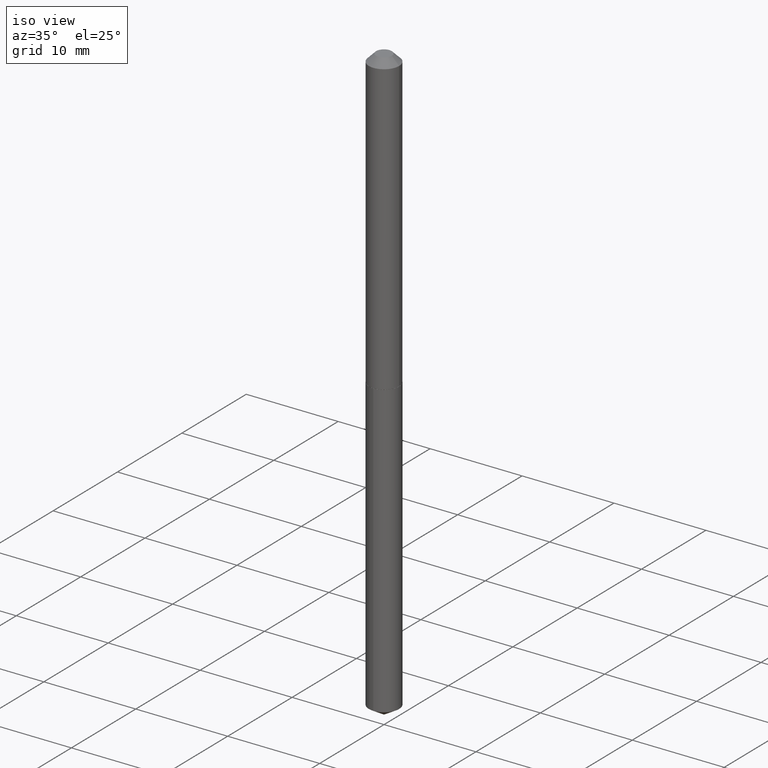
[diagram: clean part render]
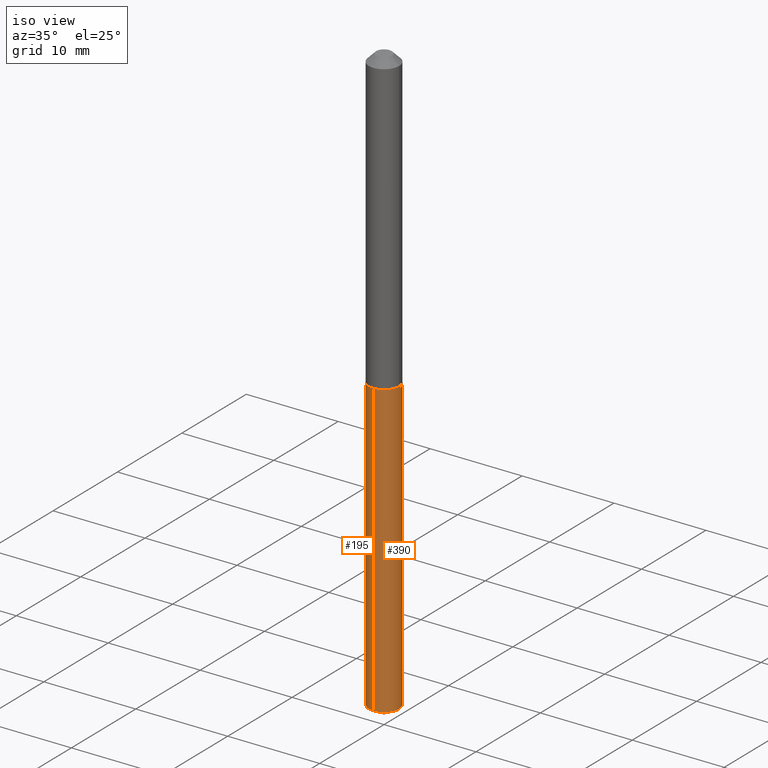
[diagram: same view with one multi-face feature highlighted, each face labeled with its STEP entity id]
A machine part, iso view. The highlighted faces form ONE feature: a constant-radius fillet chain: 2 tangent blend faces with common blend radius 1.6497 mm. The faces share edges in the B-rep.
Their STEP definitions:
[1] entity #195 (Cylinder):
#9 = AXIS2_PLACEMENT_3D ( 'NONE', #377, #18, #171 ) ;
#12 = FACE_OUTER_BOUND ( 'NONE', #358, .T. ) ;
#14 = CARTESIAN_POINT ( 'NONE',  ( 4.614975068762160884E-16, 0.06494999999999555296, -1.271700000000000275 ) ) ;
#18 = DIRECTION ( 'NONE',  ( -2.445534301021628204E-29, 3.491387546509555322E-15, 1.000000000000000000 ) ) ;
#22 = VERTEX_POINT ( 'NONE', #337 ) ;
#26 = EDGE_CURVE ( 'NONE', #384, #375, #37, .T. ) ;
#36 = DIRECTION ( 'NONE',  ( -2.445534301021628204E-29, 3.491387546509555322E-15, 1.000000000000000000 ) ) ;
#37 = CIRCLE ( 'NONE', #367, 0.06494999999999999385 ) ;
#49 = CARTESIAN_POINT ( 'NONE',  ( -4.535434259156918360E-16, -0.06495000000000443474, -1.271699999999999608 ) ) ;
#55 = CARTESIAN_POINT ( 'NONE',  ( 6.162844369715857787E-29, -8.798674614487400360E-15, -2.520074102794160442 ) ) ;
#76 = CARTESIAN_POINT ( 'NONE',  ( -4.535434259156613663E-16, -0.06495000000000882012, -2.520074102794160442 ) ) ;
#100 = CIRCLE ( 'NONE', #9, 0.06494999999999999385 ) ;
#158 = ORIENTED_EDGE ( 'NONE', *, *, #26, .T. ) ;
#160 = AXIS2_PLACEMENT_3D ( 'NONE', #263, #36, #289 ) ;
#166 = VECTOR ( 'NONE', #268, 39.37007874015748143 ) ;
#171 = DIRECTION ( 'NONE',  ( -6.982962677686266711E-15, -1.000000000000000000, 4.206078512185163024E-15 ) ) ;
#185 = DIRECTION ( 'NONE',  ( -2.445534301021628204E-29, 3.491387546509555322E-15, 1.000000000000000000 ) ) ;
#195 = ADVANCED_FACE ( 'NONE', ( #12 ), #313, .T. ) ;
#202 = EDGE_CURVE ( 'NONE', #375, #274, #260, .T. ) ;
#211 = CARTESIAN_POINT ( 'NONE',  ( 4.614975068762467554E-16, 0.06494999999999120921, -2.520074102794160442 ) ) ;
#224 = ORIENTED_EDGE ( 'NONE', *, *, #261, .F. ) ;
#260 = LINE ( 'NONE', #319, #283 ) ;
#261 = EDGE_CURVE ( 'NONE', #384, #22, #379, .T. ) ;
#263 = CARTESIAN_POINT ( 'NONE',  ( 3.109902680825638129E-29, -4.440116818606828093E-15, -1.271700000000000053 ) ) ;
#267 = EDGE_CURVE ( 'NONE', #22, #274, #100, .T. ) ;
#268 = DIRECTION ( 'NONE',  ( -2.445534301021628204E-29, 3.491387546509555322E-15, 1.000000000000000000 ) ) ;
#274 = VERTEX_POINT ( 'NONE', #49 ) ;
#283 = VECTOR ( 'NONE', #322, 39.37007874015748143 ) ;
#289 = DIRECTION ( 'NONE',  ( -6.982962677686266711E-15, -1.000000000000000000, 4.206078512185163024E-15 ) ) ;
#304 = DIRECTION ( 'NONE',  ( -6.982962677686266711E-15, -1.000000000000000000, 0.000000000000000000 ) ) ;
#313 = CYLINDRICAL_SURFACE ( 'NONE', #160, 0.06494999999999999385 ) ;
#319 = CARTESIAN_POINT ( 'NONE',  ( -4.535434259156918360E-16, -0.06495000000000443474, -1.271699999999999608 ) ) ;
#322 = DIRECTION ( 'NONE',  ( -2.445534301021628204E-29, 3.491387546509555322E-15, 1.000000000000000000 ) ) ;
#337 = CARTESIAN_POINT ( 'NONE',  ( 4.614975068762469526E-16, 0.06494999999999556684, -1.271700000000000275 ) ) ;
#356 = ORIENTED_EDGE ( 'NONE', *, *, #267, .F. ) ;
#358 = EDGE_LOOP ( 'NONE', ( #224, #158, #363, #356 ) ) ;
#363 = ORIENTED_EDGE ( 'NONE', *, *, #202, .T. ) ;
#367 = AXIS2_PLACEMENT_3D ( 'NONE', #55, #185, #304 ) ;
#375 = VERTEX_POINT ( 'NONE', #76 ) ;
#377 = CARTESIAN_POINT ( 'NONE',  ( 3.109902680825638129E-29, -4.440116818606828093E-15, -1.271700000000000053 ) ) ;
#379 = LINE ( 'NONE', #14, #166 ) ;
#384 = VERTEX_POINT ( 'NONE', #211 ) ;
[2] entity #390 (Cylinder):
#8 = AXIS2_PLACEMENT_3D ( 'NONE', #338, #193, #314 ) ;
#14 = CARTESIAN_POINT ( 'NONE',  ( 4.614975068762160884E-16, 0.06494999999999555296, -1.271700000000000275 ) ) ;
#22 = VERTEX_POINT ( 'NONE', #337 ) ;
#49 = CARTESIAN_POINT ( 'NONE',  ( -4.535434259156918360E-16, -0.06495000000000443474, -1.271699999999999608 ) ) ;
#51 = AXIS2_PLACEMENT_3D ( 'NONE', #99, #256, #197 ) ;
#68 = EDGE_CURVE ( 'NONE', #375, #384, #172, .T. ) ;
#75 = CYLINDRICAL_SURFACE ( 'NONE', #246, 0.06494999999999999385 ) ;
#76 = CARTESIAN_POINT ( 'NONE',  ( -4.535434259156613663E-16, -0.06495000000000882012, -2.520074102794160442 ) ) ;
#83 = EDGE_LOOP ( 'NONE', ( #387, #331, #349, #251 ) ) ;
#99 = CARTESIAN_POINT ( 'NONE',  ( 6.162844369715857787E-29, -8.798674614487400360E-15, -2.520074102794160442 ) ) ;
#115 = EDGE_CURVE ( 'NONE', #274, #22, #227, .T. ) ;
#166 = VECTOR ( 'NONE', #268, 39.37007874015748143 ) ;
#172 = CIRCLE ( 'NONE', #51, 0.06494999999999999385 ) ;
#176 = CARTESIAN_POINT ( 'NONE',  ( 3.109902680825638129E-29, -4.440116818606828093E-15, -1.271700000000000053 ) ) ;
#193 = DIRECTION ( 'NONE',  ( -2.445534301021628204E-29, 3.491387546509555322E-15, 1.000000000000000000 ) ) ;
#197 = DIRECTION ( 'NONE',  ( -6.982962677686266711E-15, -1.000000000000000000, 0.000000000000000000 ) ) ;
#202 = EDGE_CURVE ( 'NONE', #375, #274, #260, .T. ) ;
#211 = CARTESIAN_POINT ( 'NONE',  ( 4.614975068762467554E-16, 0.06494999999999120921, -2.520074102794160442 ) ) ;
#227 = CIRCLE ( 'NONE', #8, 0.06494999999999999385 ) ;
#246 = AXIS2_PLACEMENT_3D ( 'NONE', #176, #281, #301 ) ;
#251 = ORIENTED_EDGE ( 'NONE', *, *, #202, .F. ) ;
#256 = DIRECTION ( 'NONE',  ( -2.445534301021628204E-29, 3.491387546509555322E-15, 1.000000000000000000 ) ) ;
#260 = LINE ( 'NONE', #319, #283 ) ;
#261 = EDGE_CURVE ( 'NONE', #384, #22, #379, .T. ) ;
#268 = DIRECTION ( 'NONE',  ( -2.445534301021628204E-29, 3.491387546509555322E-15, 1.000000000000000000 ) ) ;
#274 = VERTEX_POINT ( 'NONE', #49 ) ;
#281 = DIRECTION ( 'NONE',  ( -2.445534301021628204E-29, 3.491387546509555322E-15, 1.000000000000000000 ) ) ;
#283 = VECTOR ( 'NONE', #322, 39.37007874015748143 ) ;
#301 = DIRECTION ( 'NONE',  ( -6.982962677686266711E-15, -1.000000000000000000, 4.206078512185163024E-15 ) ) ;
#314 = DIRECTION ( 'NONE',  ( -6.982962677686266711E-15, -1.000000000000000000, 4.206078512185163024E-15 ) ) ;
#319 = CARTESIAN_POINT ( 'NONE',  ( -4.535434259156918360E-16, -0.06495000000000443474, -1.271699999999999608 ) ) ;
#322 = DIRECTION ( 'NONE',  ( -2.445534301021628204E-29, 3.491387546509555322E-15, 1.000000000000000000 ) ) ;
#331 = ORIENTED_EDGE ( 'NONE', *, *, #261, .T. ) ;
#337 = CARTESIAN_POINT ( 'NONE',  ( 4.614975068762469526E-16, 0.06494999999999556684, -1.271700000000000275 ) ) ;
#338 = CARTESIAN_POINT ( 'NONE',  ( 3.109902680825638129E-29, -4.440116818606828093E-15, -1.271700000000000053 ) ) ;
#348 = FACE_OUTER_BOUND ( 'NONE', #83, .T. ) ;
#349 = ORIENTED_EDGE ( 'NONE', *, *, #115, .F. ) ;
#375 = VERTEX_POINT ( 'NONE', #76 ) ;
#379 = LINE ( 'NONE', #14, #166 ) ;
#384 = VERTEX_POINT ( 'NONE', #211 ) ;
#387 = ORIENTED_EDGE ( 'NONE', *, *, #68, .T. ) ;
#390 = ADVANCED_FACE ( 'NONE', ( #348 ), #75, .T. ) ;